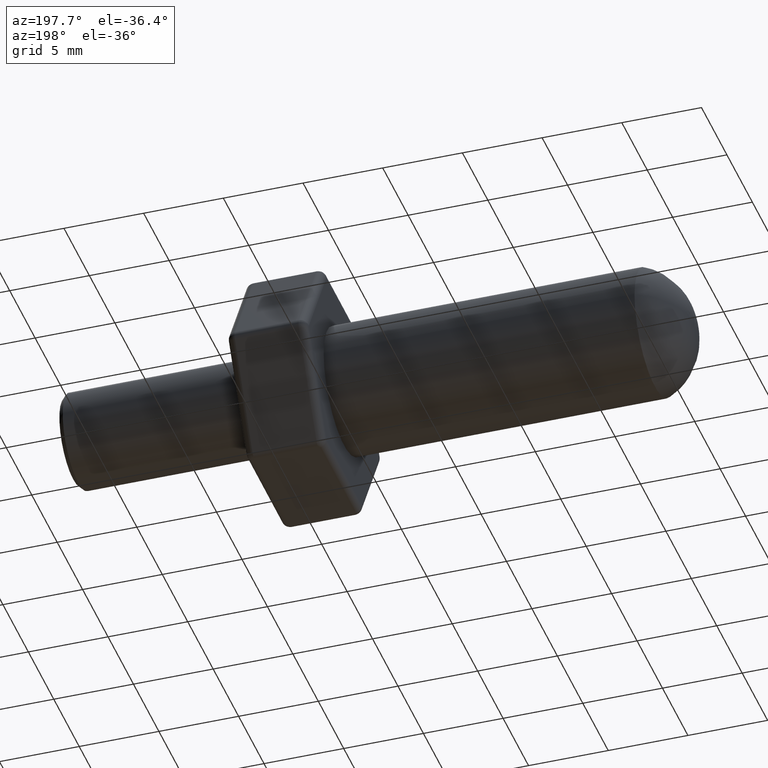
[diagram: clean part render]
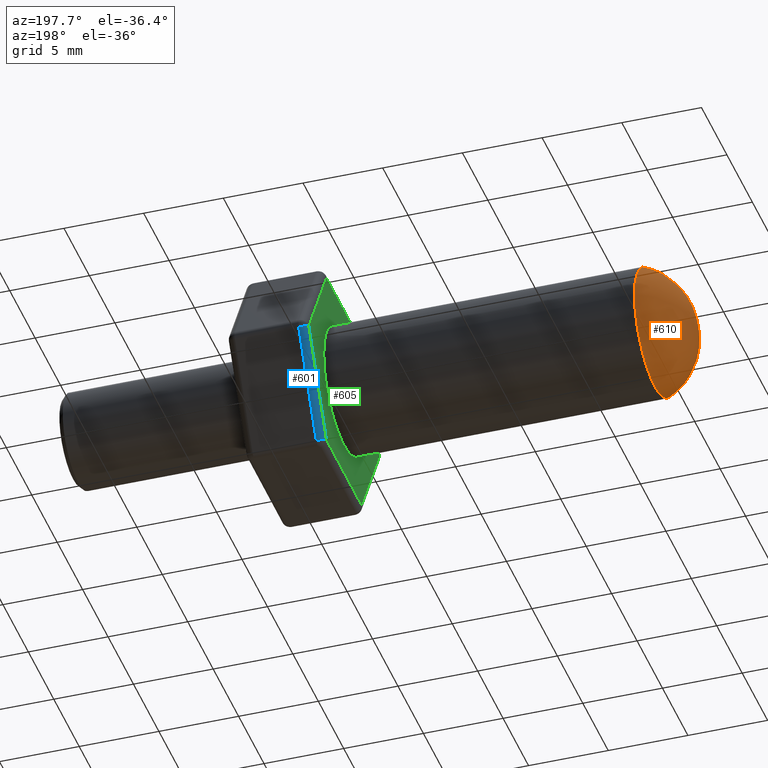
[diagram: same view with three faces highlighted in distinct colors, each labeled with its STEP entity id]
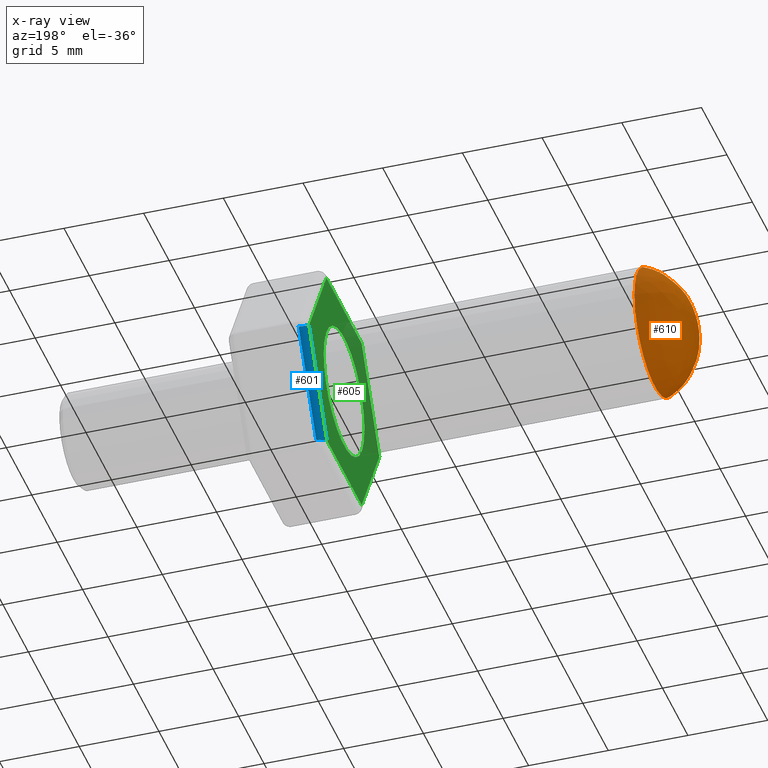
[diagram: x-ray of the same camera — body ghosted, the three highlighted faces saturated]
A machine part, auxiliary view with three faces highlighted in distinct colors.
The next image is the same camera in x-ray (body ghosted, the three faces saturated) — at least one of them is partly hidden behind the body in this view.
Their STEP definitions:

[orange] entity #610 — the highlighted face is a freeform B-spline surface patch.
#15=(
BOUNDED_SURFACE()
B_SPLINE_SURFACE(2,2,((#1103,#1104,#1105,#1106,#1107,#1108,#1109,#1110,
#1111),(#1112,#1113,#1114,#1115,#1116,#1117,#1118,#1119,#1120),(#1121,#1122,
#1123,#1124,#1125,#1126,#1127,#1128,#1129)),.UNSPECIFIED.,.F.,.T.,.F.)
B_SPLINE_SURFACE_WITH_KNOTS((3,3),(3,2,2,2,3),(-1.64279001901994,-0.381604003882723),
(-3.14159265358979,-1.5707963267949,0.,1.5707963267949,3.14159265358979),
 .UNSPECIFIED.)
GEOMETRIC_REPRESENTATION_ITEM()
RATIONAL_B_SPLINE_SURFACE(((1.,0.707106781186548,1.,0.707106781186548,1.,
0.707106781186548,1.,0.707106781186548,1.),(0.807677998957505,0.571114590078033,
0.807677998957505,0.571114590078033,0.807677998957505,0.571114590078033,
0.807677998957505,0.571114590078033,0.807677998957505),(1.,0.707106781186548,
1.,0.707106781186548,1.,0.707106781186548,1.,0.707106781186548,1.)))
REPRESENTATION_ITEM('')
SURFACE()
);
#168=FACE_OUTER_BOUND('',#213,.T.);
#213=EDGE_LOOP('',(#551,#552,#553,#554,#555));
#255=CIRCLE('',#714,3.99999999999999);
#256=CIRCLE('',#715,3.99999999999999);
#257=CIRCLE('',#716,3.99999999999999);
#258=CIRCLE('',#717,4.);
#300=VERTEX_POINT('',#1096);
#301=VERTEX_POINT('',#1098);
#302=VERTEX_POINT('',#1100);
#303=VERTEX_POINT('',#1130);
#384=EDGE_CURVE('',#300,#301,#255,.T.);
#385=EDGE_CURVE('',#301,#302,#256,.T.);
#386=EDGE_CURVE('',#302,#300,#257,.T.);
#387=EDGE_CURVE('',#302,#303,#258,.T.);
#551=ORIENTED_EDGE('',*,*,#385,.F.);
#552=ORIENTED_EDGE('',*,*,#384,.F.);
#553=ORIENTED_EDGE('',*,*,#386,.F.);
#554=ORIENTED_EDGE('',*,*,#387,.T.);
#555=ORIENTED_EDGE('',*,*,#387,.F.);
#610=ADVANCED_FACE('',(#168),#15,.F.);
#714=AXIS2_PLACEMENT_3D('',#1099,#925,#926);
#715=AXIS2_PLACEMENT_3D('',#1101,#927,#928);
#716=AXIS2_PLACEMENT_3D('',#1102,#929,#930);
#717=AXIS2_PLACEMENT_3D('',#1131,#931,#932);
#925=DIRECTION('center_axis',(1.,0.,0.));
#926=DIRECTION('ref_axis',(0.,1.,0.));
#927=DIRECTION('center_axis',(1.,0.,0.));
#928=DIRECTION('ref_axis',(0.,1.,0.));
#929=DIRECTION('center_axis',(1.,0.,0.));
#930=DIRECTION('ref_axis',(0.,1.,0.));
#931=DIRECTION('center_axis',(0.,-1.,-1.22464679914735E-16));
#932=DIRECTION('ref_axis',(0.,-1.22464679914735E-16,1.));
#1096=CARTESIAN_POINT('',(2.5,-4.,-4.89858719658941E-16));
#1098=CARTESIAN_POINT('',(2.5,3.99999999999999,0.));
#1099=CARTESIAN_POINT('Origin',(2.5,0.,0.));
#1100=CARTESIAN_POINT('',(2.5,-4.89858719658941E-16,3.99999999999999));
#1101=CARTESIAN_POINT('Origin',(2.5,0.,0.));
#1102=CARTESIAN_POINT('Origin',(2.5,0.,0.));
#1103=CARTESIAN_POINT('Ctrl Pts',(5.55111512312578E-16,0.,-2.77555756156289E-16));
#1104=CARTESIAN_POINT('Ctrl Pts',(5.55111512312578E-16,2.77555756156289E-16,
-2.77555756156289E-16));
#1105=CARTESIAN_POINT('Ctrl Pts',(5.55111512312578E-16,2.77555756156289E-16,
0.));
#1106=CARTESIAN_POINT('Ctrl Pts',(5.55111512312578E-16,2.77555756156289E-16,
2.77555756156289E-16));
#1107=CARTESIAN_POINT('Ctrl Pts',(5.55111512312578E-16,0.,2.77555756156289E-16));
#1108=CARTESIAN_POINT('Ctrl Pts',(5.55111512312578E-16,-2.77555756156289E-16,
2.77555756156289E-16));
#1109=CARTESIAN_POINT('Ctrl Pts',(5.55111512312578E-16,-2.77555756156289E-16,
0.));
#1110=CARTESIAN_POINT('Ctrl Pts',(5.55111512312578E-16,-2.77555756156289E-16,
-2.77555756156289E-16));
#1111=CARTESIAN_POINT('Ctrl Pts',(5.55111512312578E-16,0.,-2.77555756156289E-16));
#1112=CARTESIAN_POINT('Ctrl Pts',(-0.210046755054815,0.,2.91252922190926));
#1113=CARTESIAN_POINT('Ctrl Pts',(-0.210046755054815,-2.91252922190926,
2.91252922190926));
#1114=CARTESIAN_POINT('Ctrl Pts',(-0.210046755054815,-2.91252922190926,
0.));
#1115=CARTESIAN_POINT('Ctrl Pts',(-0.210046755054815,-2.91252922190926,
-2.91252922190926));
#1116=CARTESIAN_POINT('Ctrl Pts',(-0.210046755054815,0.,-2.91252922190926));
#1117=CARTESIAN_POINT('Ctrl Pts',(-0.210046755054815,2.91252922190926,-2.91252922190926));
#1118=CARTESIAN_POINT('Ctrl Pts',(-0.210046755054815,2.91252922190926,0.));
#1119=CARTESIAN_POINT('Ctrl Pts',(-0.210046755054815,2.91252922190926,2.91252922190926));
#1120=CARTESIAN_POINT('Ctrl Pts',(-0.210046755054815,0.,2.91252922190926));
#1121=CARTESIAN_POINT('Ctrl Pts',(2.5,0.,3.99999999999999));
#1122=CARTESIAN_POINT('Ctrl Pts',(2.5,-3.99999999999999,3.99999999999999));
#1123=CARTESIAN_POINT('Ctrl Pts',(2.5,-3.99999999999999,0.));
#1124=CARTESIAN_POINT('Ctrl Pts',(2.5,-3.99999999999999,-3.99999999999999));
#1125=CARTESIAN_POINT('Ctrl Pts',(2.5,0.,-3.99999999999999));
#1126=CARTESIAN_POINT('Ctrl Pts',(2.5,3.99999999999999,-3.99999999999999));
#1127=CARTESIAN_POINT('Ctrl Pts',(2.5,3.99999999999999,0.));
#1128=CARTESIAN_POINT('Ctrl Pts',(2.5,3.99999999999999,3.99999999999999));
#1129=CARTESIAN_POINT('Ctrl Pts',(2.5,0.,3.99999999999999));
#1130=CARTESIAN_POINT('',(0.,0.,0.));
#1131=CARTESIAN_POINT('Origin',(3.98963829319275,-3.52362806682187E-17,
0.287726066754525));

[blue] entity #601 — the highlighted cylindrical surface (edge-blend (fillet) strip) has radius 0.5 mm, axis along (0, -0.5, -0.866).
#48=LINE('',#1026,#87);
#60=LINE('',#1074,#99);
#87=VECTOR('',#830,10.);
#99=VECTOR('',#894,10.);
#120=CYLINDRICAL_SURFACE('',#701,0.5);
#159=FACE_OUTER_BOUND('',#203,.T.);
#203=EDGE_LOOP('',(#511,#512,#513,#514));
#232=CIRCLE('',#663,0.5);
#237=CIRCLE('',#673,0.499999999999999);
#278=VERTEX_POINT('',#995);
#279=VERTEX_POINT('',#1000);
#283=VERTEX_POINT('',#1016);
#285=VERTEX_POINT('',#1022);
#337=EDGE_CURVE('',#279,#278,#232,.T.);
#347=EDGE_CURVE('',#283,#285,#237,.T.);
#349=EDGE_CURVE('',#283,#278,#48,.T.);
#373=EDGE_CURVE('',#279,#285,#60,.T.);
#511=ORIENTED_EDGE('',*,*,#337,.F.);
#512=ORIENTED_EDGE('',*,*,#373,.T.);
#513=ORIENTED_EDGE('',*,*,#347,.F.);
#514=ORIENTED_EDGE('',*,*,#349,.T.);
#601=ADVANCED_FACE('',(#159),#120,.T.);
#663=AXIS2_PLACEMENT_3D('',#1002,#799,#800);
#673=AXIS2_PLACEMENT_3D('',#1023,#824,#825);
#701=AXIS2_PLACEMENT_3D('',#1073,#892,#893);
#799=DIRECTION('center_axis',(0.,-0.5,-0.866025403784439));
#800=DIRECTION('ref_axis',(-0.707106781186546,0.612372435695795,-0.353553390593275));
#824=DIRECTION('center_axis',(0.,0.5,0.866025403784439));
#825=DIRECTION('ref_axis',(-0.707106781186547,0.612372435695795,-0.353553390593275));
#830=DIRECTION('',(0.,-0.5,-0.866025403784439));
#892=DIRECTION('center_axis',(0.,-0.5,-0.866025403784439));
#893=DIRECTION('ref_axis',(-0.707106781186546,0.612372435695795,-0.353553390593275));
#894=DIRECTION('',(0.,0.5,0.866025403784439));
#995=CARTESIAN_POINT('',(22.5,3.89711431702997,-6.25));
#1000=CARTESIAN_POINT('',(22.,3.46410161513775,-6.));
#1002=CARTESIAN_POINT('Origin',(22.5,3.46410161513775,-6.));
#1016=CARTESIAN_POINT('',(22.5,7.36121593216773,-0.249999999999996));
#1022=CARTESIAN_POINT('',(22.,6.92820323027551,3.33066907387547E-15));
#1023=CARTESIAN_POINT('Origin',(22.5,6.92820323027551,4.44089209850063E-15));
#1026=CARTESIAN_POINT('',(22.5,4.69097093716571,-4.875));
#1073=CARTESIAN_POINT('Origin',(22.5,4.25795823527349,-4.625));
#1074=CARTESIAN_POINT('',(22.,4.25795823527349,-4.625));

[green] entity #605 — the highlighted planar face has unit normal (1, 0, 0).
#18=FACE_BOUND('',#208,.T.);
#26=PLANE('',#705);
#58=LINE('',#1070,#97);
#59=LINE('',#1072,#98);
#60=LINE('',#1074,#99);
#61=LINE('',#1076,#100);
#62=LINE('',#1078,#101);
#63=LINE('',#1080,#102);
#97=VECTOR('',#888,10.);
#98=VECTOR('',#891,10.);
#99=VECTOR('',#894,10.);
#100=VECTOR('',#897,10.);
#101=VECTOR('',#900,10.);
#102=VECTOR('',#903,10.);
#163=FACE_OUTER_BOUND('',#207,.T.);
#207=EDGE_LOOP('',(#527,#528,#529,#530,#531,#532));
#208=EDGE_LOOP('',(#533,#534));
#251=CIRCLE('',#706,4.);
#252=CIRCLE('',#707,4.);
#264=VERTEX_POINT('',#948);
#273=VERTEX_POINT('',#978);
#279=VERTEX_POINT('',#1000);
#285=VERTEX_POINT('',#1022);
#291=VERTEX_POINT('',#1044);
#294=VERTEX_POINT('',#1061);
#296=VERTEX_POINT('',#1082);
#297=VERTEX_POINT('',#1083);
#371=EDGE_CURVE('',#294,#264,#58,.T.);
#372=EDGE_CURVE('',#285,#291,#59,.T.);
#373=EDGE_CURVE('',#279,#285,#60,.T.);
#374=EDGE_CURVE('',#273,#279,#61,.T.);
#375=EDGE_CURVE('',#264,#273,#62,.T.);
#376=EDGE_CURVE('',#291,#294,#63,.T.);
#377=EDGE_CURVE('',#296,#297,#251,.T.);
#378=EDGE_CURVE('',#297,#296,#252,.T.);
#527=ORIENTED_EDGE('',*,*,#372,.F.);
#528=ORIENTED_EDGE('',*,*,#373,.F.);
#529=ORIENTED_EDGE('',*,*,#374,.F.);
#530=ORIENTED_EDGE('',*,*,#375,.F.);
#531=ORIENTED_EDGE('',*,*,#371,.F.);
#532=ORIENTED_EDGE('',*,*,#376,.F.);
#533=ORIENTED_EDGE('',*,*,#377,.T.);
#534=ORIENTED_EDGE('',*,*,#378,.T.);
#605=ADVANCED_FACE('',(#163,#18),#26,.F.);
#705=AXIS2_PLACEMENT_3D('',#1081,#904,#905);
#706=AXIS2_PLACEMENT_3D('',#1084,#906,#907);
#707=AXIS2_PLACEMENT_3D('',#1085,#908,#909);
#888=DIRECTION('',(0.,-0.5,-0.866025403784439));
#891=DIRECTION('',(0.,-0.5,0.866025403784438));
#894=DIRECTION('',(0.,0.5,0.866025403784439));
#897=DIRECTION('',(0.,1.,-1.4792020664489E-16));
#900=DIRECTION('',(0.,0.5,-0.866025403784439));
#903=DIRECTION('',(0.,-1.,-2.95840413289779E-16));
#904=DIRECTION('center_axis',(1.,0.,0.));
#905=DIRECTION('ref_axis',(0.,0.,-1.));
#906=DIRECTION('center_axis',(1.,0.,0.));
#907=DIRECTION('ref_axis',(0.,1.,0.));
#908=DIRECTION('center_axis',(1.,0.,0.));
#909=DIRECTION('ref_axis',(0.,1.,0.));
#948=CARTESIAN_POINT('',(22.,-6.92820323027551,-1.38777878078145E-15));
#978=CARTESIAN_POINT('',(22.,-3.46410161513776,-6.));
#1000=CARTESIAN_POINT('',(22.,3.46410161513775,-6.));
#1022=CARTESIAN_POINT('',(22.,6.92820323027551,3.33066907387547E-15));
#1044=CARTESIAN_POINT('',(22.,3.46410161513775,6.));
#1061=CARTESIAN_POINT('',(22.,-3.46410161513776,6.));
#1070=CARTESIAN_POINT('',(22.,-4.25795823527349,4.625));
#1072=CARTESIAN_POINT('',(22.,6.13434661013978,1.375));
#1074=CARTESIAN_POINT('',(22.,4.25795823527349,-4.625));
#1076=CARTESIAN_POINT('',(22.,-1.87638837486628,-6.));
#1078=CARTESIAN_POINT('',(22.,-6.13434661013978,-1.375));
#1080=CARTESIAN_POINT('',(22.,1.87638837486628,6.));
#1081=CARTESIAN_POINT('Origin',(22.,0.,9.2450129153056E-17));
#1082=CARTESIAN_POINT('',(22.,4.,0.));
#1083=CARTESIAN_POINT('',(22.,-4.,-4.89858719658941E-16));
#1084=CARTESIAN_POINT('Origin',(22.,0.,0.));
#1085=CARTESIAN_POINT('Origin',(22.,0.,0.));